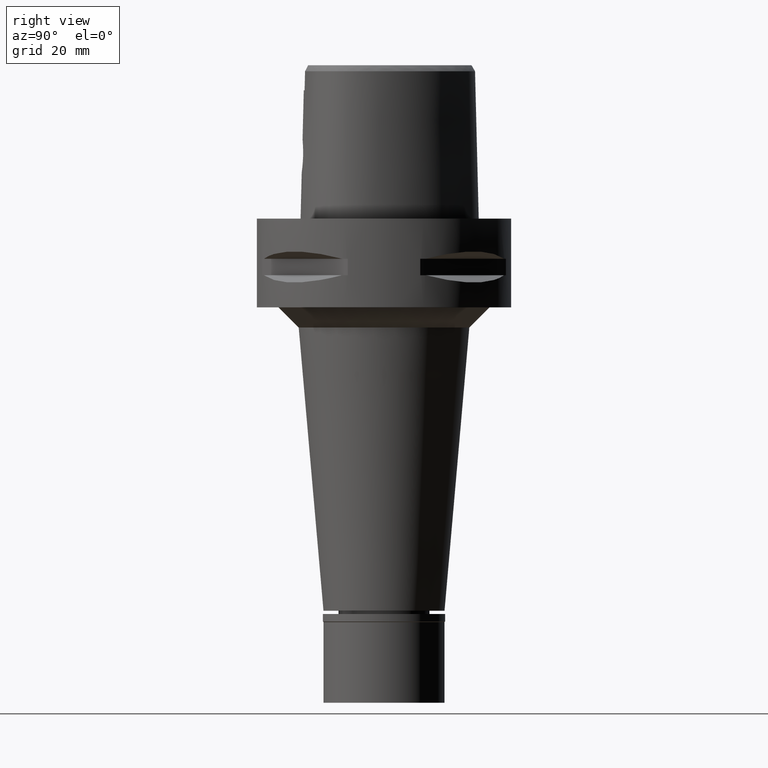
[diagram: clean part render]
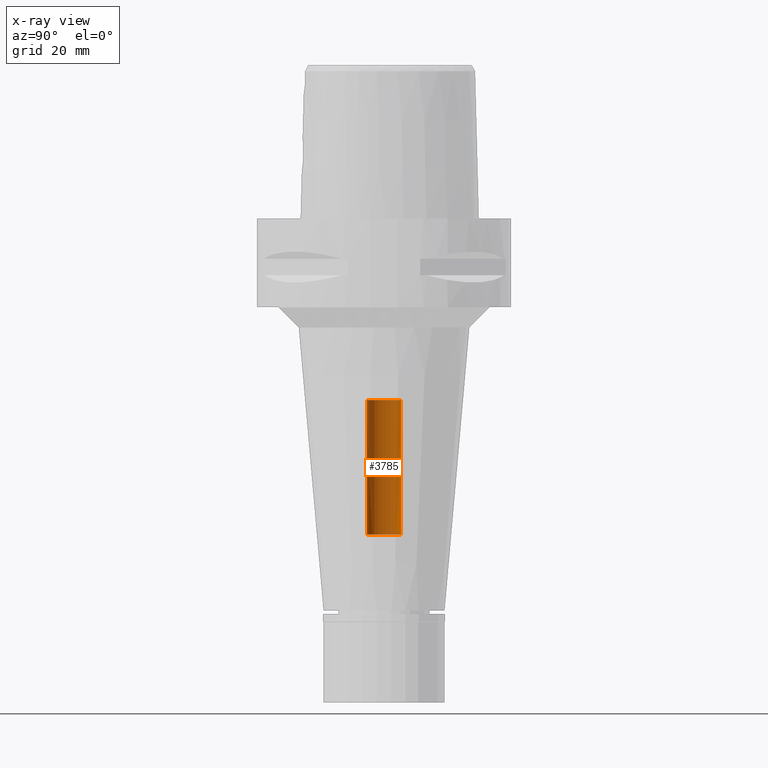
[diagram: x-ray — body ghosted, one internal face saturated and labeled with its STEP entity id]
A machine part, right view, then the same camera in x-ray: the body is ghosted and one INTERNAL B-rep face — a face not visible from any outside direction — is saturated and labeled: STEP entity #3785.
In plain terms, the highlighted cylindrical surface (edge-blend (fillet) strip) has radius 4.2 mm, axis along (0, 0, -1).
Its self-contained STEP definition (entity closure, byte-faithful):
#196 = ORIENTED_EDGE ( 'NONE', *, *, #2112, .F. ) ;
#227 = CARTESIAN_POINT ( 'NONE',  ( 0.0000000000000000000, 4.200000000000000178, -78.29999999999999716 ) ) ;
#350 = VERTEX_POINT ( 'NONE', #1721 ) ;
#494 = FACE_OUTER_BOUND ( 'NONE', #1785, .T. ) ;
#538 = DIRECTION ( 'NONE',  ( 0.0000000000000000000, 0.0000000000000000000, 1.000000000000000000 ) ) ;
#548 = CARTESIAN_POINT ( 'NONE',  ( 0.0000000000000000000, 0.0000000000000000000, 5.665000000000000036 ) ) ;
#607 = DIRECTION ( 'NONE',  ( 0.0000000000000000000, 0.0000000000000000000, 1.000000000000000000 ) ) ;
#1246 = ORIENTED_EDGE ( 'NONE', *, *, #3097, .T. ) ;
#1291 = ORIENTED_EDGE ( 'NONE', *, *, #3173, .T. ) ;
#1385 = CARTESIAN_POINT ( 'NONE',  ( 0.0000000000000000000, 0.0000000000000000000, -45.00000000000000000 ) ) ;
#1599 = AXIS2_PLACEMENT_3D ( 'NONE', #4495, #4520, #4860 ) ;
#1629 = CARTESIAN_POINT ( 'NONE',  ( 0.0000000000000000000, -4.200000000000000178, -78.29999999999999716 ) ) ;
#1676 = CIRCLE ( 'NONE', #1599, 4.200000000000000178 ) ;
#1693 = DIRECTION ( 'NONE',  ( 0.0000000000000000000, -1.000000000000000000, 0.0000000000000000000 ) ) ;
#1721 = CARTESIAN_POINT ( 'NONE',  ( 0.0000000000000000000, 4.200000000000000178, -78.29999999999999716 ) ) ;
#1760 = AXIS2_PLACEMENT_3D ( 'NONE', #1385, #607, #4125 ) ;
#1785 = EDGE_LOOP ( 'NONE', ( #1291, #196, #1246, #2849 ) ) ;
#2077 = CYLINDRICAL_SURFACE ( 'NONE', #2994, 4.200000000000000178 ) ;
#2112 = EDGE_CURVE ( 'NONE', #4968, #2543, #3172, .T. ) ;
#2389 = EDGE_CURVE ( 'NONE', #350, #3943, #2989, .T. ) ;
#2405 = VECTOR ( 'NONE', #2832, 1000.000000000000000 ) ;
#2543 = VERTEX_POINT ( 'NONE', #2576 ) ;
#2576 = CARTESIAN_POINT ( 'NONE',  ( 0.0000000000000000000, -4.200000000000000178, -45.00000000000000000 ) ) ;
#2589 = CARTESIAN_POINT ( 'NONE',  ( 0.0000000000000000000, 4.200000000000000178, -45.00000000000000000 ) ) ;
#2657 = CIRCLE ( 'NONE', #1760, 4.200000000000000178 ) ;
#2832 = DIRECTION ( 'NONE',  ( 0.0000000000000000000, 0.0000000000000000000, 1.000000000000000000 ) ) ;
#2849 = ORIENTED_EDGE ( 'NONE', *, *, #2389, .T. ) ;
#2865 = DIRECTION ( 'NONE',  ( 0.0000000000000000000, 0.0000000000000000000, -1.000000000000000000 ) ) ;
#2989 = LINE ( 'NONE', #227, #3650 ) ;
#2994 = AXIS2_PLACEMENT_3D ( 'NONE', #548, #2865, #1693 ) ;
#3097 = EDGE_CURVE ( 'NONE', #4968, #350, #1676, .T. ) ;
#3173 = EDGE_CURVE ( 'NONE', #3943, #2543, #2657, .T. ) ;
#3172 = LINE ( 'NONE', #3592, #2405 ) ;
#3592 = CARTESIAN_POINT ( 'NONE',  ( 0.0000000000000000000, -4.200000000000000178, -78.29999999999999716 ) ) ;
#3650 = VECTOR ( 'NONE', #538, 1000.000000000000000 ) ;
#3785 = ADVANCED_FACE ( 'NONE', ( #494 ), #2077, .F. ) ;
#3943 = VERTEX_POINT ( 'NONE', #2589 ) ;
#4125 = DIRECTION ( 'NONE',  ( 0.0000000000000000000, 1.000000000000000000, 0.0000000000000000000 ) ) ;
#4495 = CARTESIAN_POINT ( 'NONE',  ( 0.0000000000000000000, 0.0000000000000000000, -78.29999999999999716 ) ) ;
#4520 = DIRECTION ( 'NONE',  ( 0.0000000000000000000, 0.0000000000000000000, -1.000000000000000000 ) ) ;
#4860 = DIRECTION ( 'NONE',  ( 0.0000000000000000000, -1.000000000000000000, 0.0000000000000000000 ) ) ;
#4968 = VERTEX_POINT ( 'NONE', #1629 ) ;